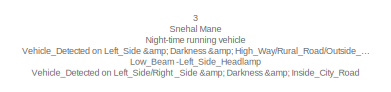
[diagram: root canvas - part 1/4, top left region]
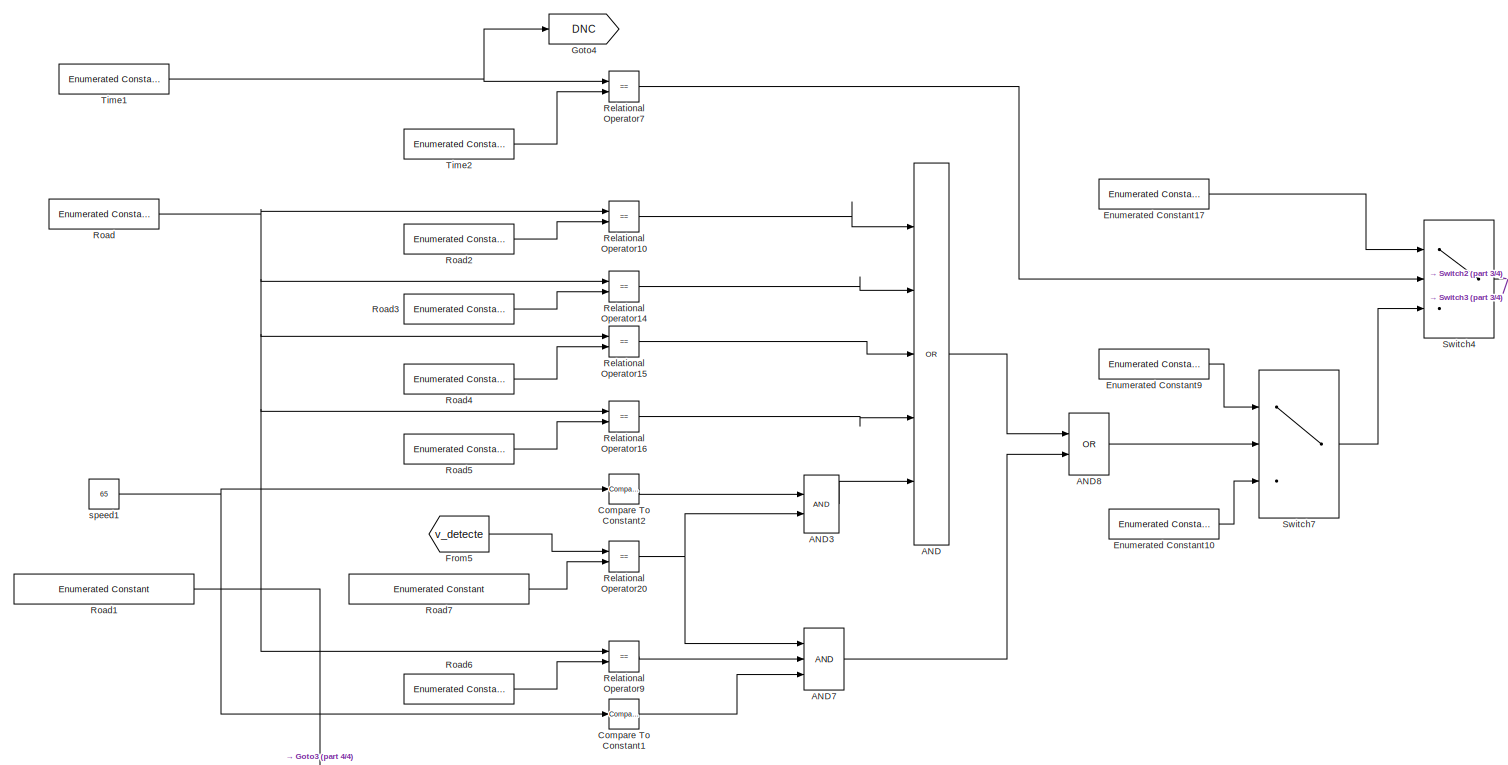
[diagram: root canvas - part 2/4, full width, middle band]
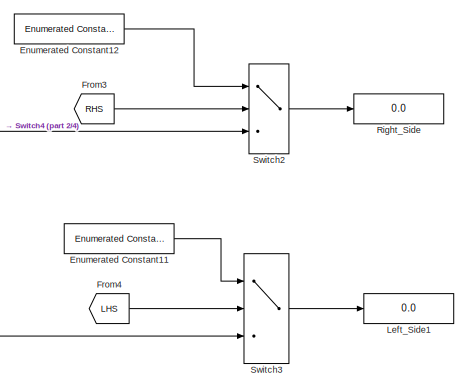
[diagram: root canvas - part 3/4, middle right region]
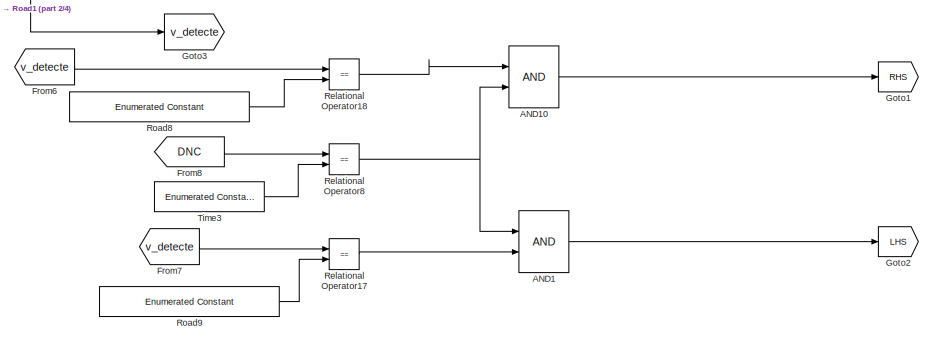
[diagram: root canvas - part 4/4, bottom center region]
MODEL slx_8365fd942ef1
KIND model
CONFIG AbsTol = auto
CONFIG EnableMultiTasking = off
CONFIG FixedStep = 1
CONFIG MaxStep = auto
CONFIG MinStep = auto
CONFIG RelTol = 1e-3
CONFIG SampleTimeConstraint = Unconstrained
CONFIG Solver = FixedStepDiscrete
CONFIG SolverName = FixedStepDiscrete
CONFIG StartTime = 0.0
CONFIG StopTime = 10.0
BLOCK [Logic] AND
  AllPortsSameDT = off
  Inputs = 5
  Operator = OR
  OutDataTypeStr = boolean
  Ports = [5, 1]
BLOCK [Logic] AND1
  AllPortsSameDT = off
  OutDataTypeStr = boolean
  Ports = [2, 1]
BLOCK [Logic] AND10
  AllPortsSameDT = off
  OutDataTypeStr = boolean
  Ports = [2, 1]
BLOCK [Logic] AND3
  AllPortsSameDT = off
  OutDataTypeStr = boolean
  Ports = [2, 1]
BLOCK [Logic] AND7
  AllPortsSameDT = off
  Inputs = 3
  OutDataTypeStr = boolean
  Ports = [3, 1]
BLOCK [Logic] AND8
  AllPortsSameDT = off
  Operator = OR
  OutDataTypeStr = boolean
  Ports = [2, 1]
BLOCK [Reference] Compare To Constant1  REF=simulink/Logic and Bit
Operations/Compare
To Constant
  Ports = [1, 1]
  SourceBlock = simulink/Logic and Bit\nOperations/Compare\nTo Constant
  SourceProductBaseCode = SL
  SourceType = Compare To Constant
BLOCK [Reference] Compare To Constant2  REF=simulink/Logic and Bit
Operations/Compare
To Constant
  Ports = [1, 1]
  SourceBlock = simulink/Logic and Bit\nOperations/Compare\nTo Constant
  SourceProductBaseCode = SL
  SourceType = Compare To Constant
BLOCK [Reference] Enumerated Constant10  REF=simulink/Sources/Enumerated
Constant
  Ports = [0, 1]
  SourceBlock = simulink/Sources/Enumerated\nConstant
  SourceProductBaseCode = SL
  SourceType = Enumerated Constant
BLOCK [Reference] Enumerated Constant11  REF=simulink/Sources/Enumerated
Constant
  Ports = [0, 1]
  SourceBlock = simulink/Sources/Enumerated\nConstant
  SourceProductBaseCode = SL
  SourceType = Enumerated Constant
BLOCK [Reference] Enumerated Constant12  REF=simulink/Sources/Enumerated
Constant
  Ports = [0, 1]
  SourceBlock = simulink/Sources/Enumerated\nConstant
  SourceProductBaseCode = SL
  SourceType = Enumerated Constant
BLOCK [Reference] Enumerated Constant17  REF=simulink/Sources/Enumerated
Constant
  Ports = [0, 1]
  SourceBlock = simulink/Sources/Enumerated\nConstant
  SourceProductBaseCode = SL
  SourceType = Enumerated Constant
BLOCK [Reference] Enumerated Constant9  REF=simulink/Sources/Enumerated
Constant
  Ports = [0, 1]
  SourceBlock = simulink/Sources/Enumerated\nConstant
  SourceProductBaseCode = SL
  SourceType = Enumerated Constant
BLOCK [From] From3
  GotoTag = RHS
BLOCK [From] From4
  GotoTag = LHS
BLOCK [From] From5
  GotoTag = v_detecte
BLOCK [From] From6
  GotoTag = v_detecte
BLOCK [From] From7
  GotoTag = v_detecte
BLOCK [From] From8
  GotoTag = DNC
BLOCK [Goto] Goto1
  GotoTag = RHS
BLOCK [Goto] Goto2
  GotoTag = LHS
BLOCK [Goto] Goto3
  GotoTag = v_detecte
BLOCK [Goto] Goto4
  GotoTag = DNC
BLOCK [Display] Left_Side1
  Decimation = 1
  Ports = [1]
BLOCK [RelationalOperator] Relational Operator10
  InputSameDT = off
  Operator = ==
  OutDataTypeStr = boolean
  Ports = [2, 1]
  RndMeth = Simplest
BLOCK [RelationalOperator] Relational Operator14
  InputSameDT = off
  Operator = ==
  OutDataTypeStr = boolean
  Ports = [2, 1]
  RndMeth = Simplest
BLOCK [RelationalOperator] Relational Operator15
  InputSameDT = off
  Operator = ==
  OutDataTypeStr = boolean
  Ports = [2, 1]
  RndMeth = Simplest
BLOCK [RelationalOperator] Relational Operator16
  InputSameDT = off
  Operator = ==
  OutDataTypeStr = boolean
  Ports = [2, 1]
  RndMeth = Simplest
BLOCK [RelationalOperator] Relational Operator17
  InputSameDT = off
  Operator = ==
  OutDataTypeStr = boolean
  Ports = [2, 1]
  RndMeth = Simplest
BLOCK [RelationalOperator] Relational Operator18
  InputSameDT = off
  Operator = ==
  OutDataTypeStr = boolean
  Ports = [2, 1]
  RndMeth = Simplest
BLOCK [RelationalOperator] Relational Operator20
  InputSameDT = off
  Operator = ==
  OutDataTypeStr = boolean
  Ports = [2, 1]
  RndMeth = Simplest
BLOCK [RelationalOperator] Relational Operator7
  InputSameDT = off
  Operator = ==
  OutDataTypeStr = boolean
  Ports = [2, 1]
  RndMeth = Simplest
BLOCK [RelationalOperator] Relational Operator8
  InputSameDT = off
  Operator = ==
  OutDataTypeStr = boolean
  Ports = [2, 1]
  RndMeth = Simplest
BLOCK [RelationalOperator] Relational Operator9
  InputSameDT = off
  Operator = ==
  OutDataTypeStr = boolean
  Ports = [2, 1]
  RndMeth = Simplest
BLOCK [Display] Right_Side
  Decimation = 1
  Ports = [1]
BLOCK [Reference] Road  REF=simulink/Sources/Enumerated
Constant
  Ports = [0, 1]
  SourceBlock = simulink/Sources/Enumerated\nConstant
  SourceProductBaseCode = SL
  SourceType = Enumerated Constant
BLOCK [Reference] Road1  REF=simulink/Sources/Enumerated
Constant
  Ports = [0, 1]
  SourceBlock = simulink/Sources/Enumerated\nConstant
  SourceProductBaseCode = SL
  SourceType = Enumerated Constant
BLOCK [Reference] Road2  REF=simulink/Sources/Enumerated
Constant
  Ports = [0, 1]
  SourceBlock = simulink/Sources/Enumerated\nConstant
  SourceProductBaseCode = SL
  SourceType = Enumerated Constant
BLOCK [Reference] Road3  REF=simulink/Sources/Enumerated
Constant
  Ports = [0, 1]
  SourceBlock = simulink/Sources/Enumerated\nConstant
  SourceProductBaseCode = SL
  SourceType = Enumerated Constant
BLOCK [Reference] Road4  REF=simulink/Sources/Enumerated
Constant
  Ports = [0, 1]
  SourceBlock = simulink/Sources/Enumerated\nConstant
  SourceProductBaseCode = SL
  SourceType = Enumerated Constant
BLOCK [Reference] Road5  REF=simulink/Sources/Enumerated
Constant
  Ports = [0, 1]
  SourceBlock = simulink/Sources/Enumerated\nConstant
  SourceProductBaseCode = SL
  SourceType = Enumerated Constant
BLOCK [Reference] Road6  REF=simulink/Sources/Enumerated
Constant
  Ports = [0, 1]
  SourceBlock = simulink/Sources/Enumerated\nConstant
  SourceProductBaseCode = SL
  SourceType = Enumerated Constant
BLOCK [Reference] Road7  REF=simulink/Sources/Enumerated
Constant
  Ports = [0, 1]
  SourceBlock = simulink/Sources/Enumerated\nConstant
  SourceProductBaseCode = SL
  SourceType = Enumerated Constant
BLOCK [Reference] Road8  REF=simulink/Sources/Enumerated
Constant
  Ports = [0, 1]
  SourceBlock = simulink/Sources/Enumerated\nConstant
  SourceProductBaseCode = SL
  SourceType = Enumerated Constant
BLOCK [Reference] Road9  REF=simulink/Sources/Enumerated
Constant
  Ports = [0, 1]
  SourceBlock = simulink/Sources/Enumerated\nConstant
  SourceProductBaseCode = SL
  SourceType = Enumerated Constant
BLOCK [Switch] Switch2
  Criteria = u2 ~= 0
  InputSameDT = off
  SaturateOnIntegerOverflow = off
BLOCK [Switch] Switch3
  Criteria = u2 ~= 0
  InputSameDT = off
  SaturateOnIntegerOverflow = off
BLOCK [Switch] Switch4
  Criteria = u2 ~= 0
  InputSameDT = off
  SaturateOnIntegerOverflow = off
BLOCK [Switch] Switch7
  Criteria = u2 ~= 0
  InputSameDT = off
  SaturateOnIntegerOverflow = off
BLOCK [Reference] Time1  REF=simulink/Sources/Enumerated
Constant
  Ports = [0, 1]
  SourceBlock = simulink/Sources/Enumerated\nConstant
  SourceProductBaseCode = SL
  SourceType = Enumerated Constant
BLOCK [Reference] Time2  REF=simulink/Sources/Enumerated
Constant
  Ports = [0, 1]
  SourceBlock = simulink/Sources/Enumerated\nConstant
  SourceProductBaseCode = SL
  SourceType = Enumerated Constant
BLOCK [Reference] Time3  REF=simulink/Sources/Enumerated
Constant
  Ports = [0, 1]
  SourceBlock = simulink/Sources/Enumerated\nConstant
  SourceProductBaseCode = SL
  SourceType = Enumerated Constant
BLOCK [Constant] speed1
  Value = 65
ANNOTATION (root): 3 Snehal Mane Night-time running vehicle Vehicle_Detected on Left_Side & Darkness & High_Way/Rural_Road/Outside_City_Road Low_Beam -Left_Side_Headlamp Vehicle_Detected on Left_Side/Right _Side & Darkness & Inside_City_Road Low_Beam Vehicle_Detected on Right_Side & Darkness & High_Way/Rural_Road/Inside_City_Road/Outside_City_Road Low_Beam -Right_Side_Headlamp Speed > 60km/h & Darkness & No_Vehical_...<+37ch>
LINE AND10:1 -> Goto1:1
LINE AND1:1 -> Goto2:1
LINE AND3:1 -> AND:5
LINE AND7:1 -> AND8:2
LINE AND8:1 -> Switch7:2
LINE AND:1 -> AND8:1
LINE Compare To Constant1:1 -> AND7:3
LINE Compare To Constant2:1 -> AND3:1
LINE Enumerated Constant10:1 -> Switch7:3
LINE Enumerated Constant11:1 -> Switch3:1
LINE Enumerated Constant12:1 -> Switch2:1
LINE Enumerated Constant17:1 -> Switch4:1
LINE Enumerated Constant9:1 -> Switch7:1
LINE From3:1 -> Switch2:2
LINE From4:1 -> Switch3:2
LINE From5:1 -> Relational Operator20:1
LINE From6:1 -> Relational Operator18:1
LINE From7:1 -> Relational Operator17:1
LINE From8:1 -> Relational Operator8:1
LINE Relational Operator10:1 -> AND:1
LINE Relational Operator14:1 -> AND:2
LINE Relational Operator15:1 -> AND:3
LINE Relational Operator16:1 -> AND:4
LINE Relational Operator17:1 -> AND1:2
LINE Relational Operator18:1 -> AND10:1
NET Relational Operator20:1 -> AND3:2, AND7:1
LINE Relational Operator7:1 -> Switch4:2
NET Relational Operator8:1 -> AND10:2, AND1:1
LINE Relational Operator9:1 -> AND7:2
LINE Road1:1 -> Goto3:1
LINE Road2:1 -> Relational Operator10:2
LINE Road3:1 -> Relational Operator14:2
LINE Road4:1 -> Relational Operator15:2
LINE Road5:1 -> Relational Operator16:2
LINE Road6:1 -> Relational Operator9:2
LINE Road7:1 -> Relational Operator20:2
LINE Road8:1 -> Relational Operator18:2
LINE Road9:1 -> Relational Operator17:2
NET Road:1 -> Relational Operator10:1, Relational Operator14:1, Relational Operator15:1, Relational Operator16:1, Relational Operator9:1
LINE Switch2:1 -> Right_Side:1
LINE Switch3:1 -> Left_Side1:1
NET Switch4:1 -> Switch2:3, Switch3:3
LINE Switch7:1 -> Switch4:3
NET Time1:1 -> Goto4:1, Relational Operator7:1
LINE Time2:1 -> Relational Operator7:2
LINE Time3:1 -> Relational Operator8:2
NET speed1:1 -> Compare To Constant1:1, Compare To Constant2:1
note: NET lines group one-source signal fan-out (src -> all destinations, sorted); 1:1 wires keep LINE
